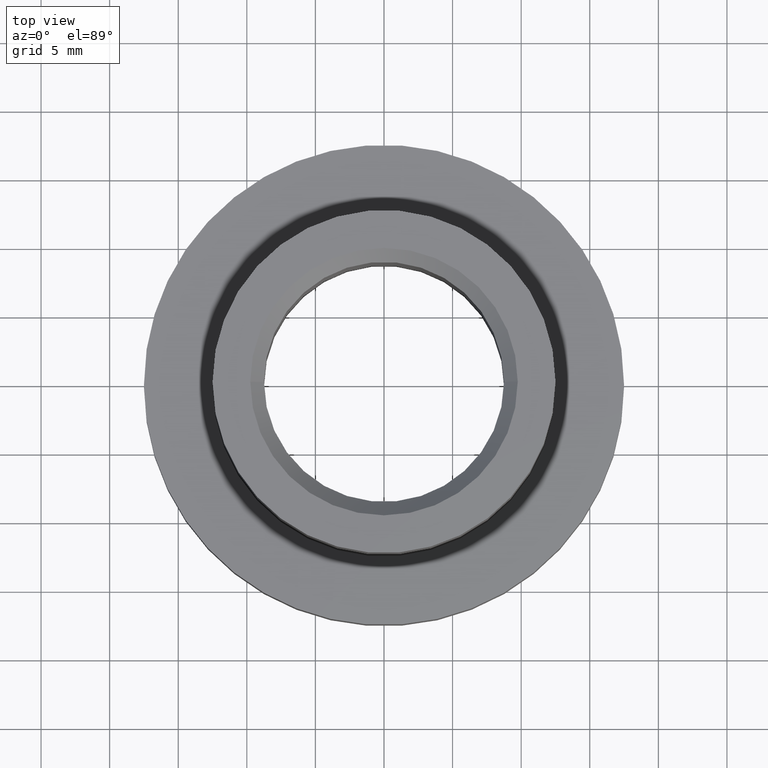
[diagram: clean part render]
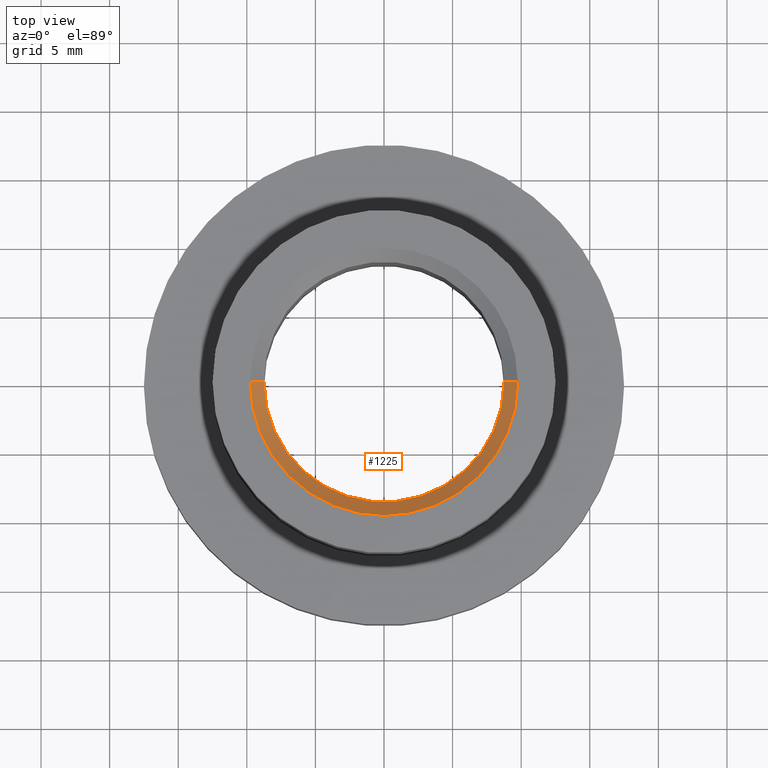
[diagram: same view with one face highlighted and labeled with its STEP entity id]
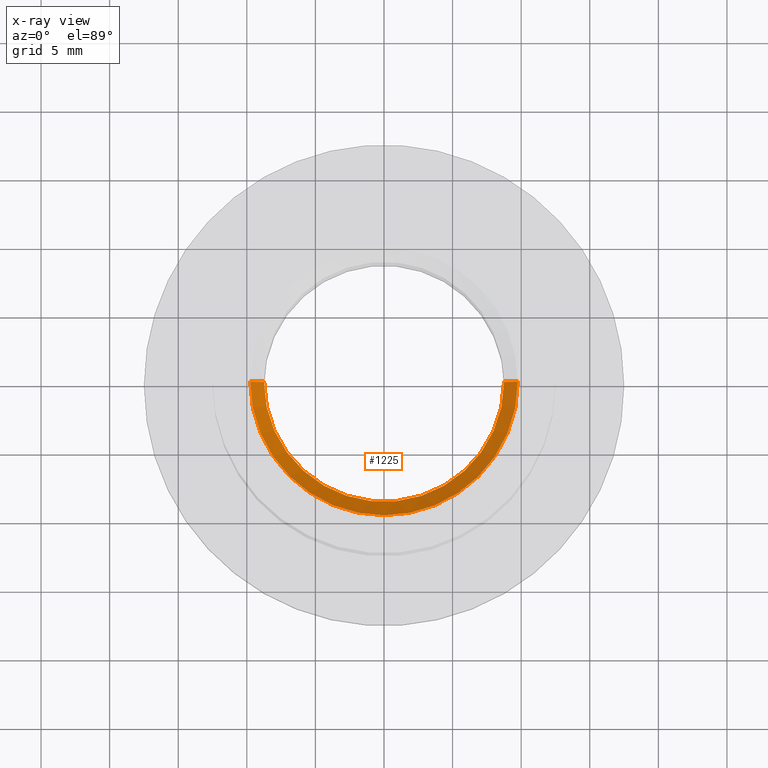
[diagram: x-ray of the same camera — body ghosted, the highlighted face saturated]
A machine part, top view. The second image highlights one B-rep face of the part: STEP entity #1225.
The next image is the same camera in x-ray: the body ghosted, the highlighted face saturated — about 0% of this face is hidden behind the body in this view.
In plain terms, the highlighted conical surface has half-angle 45 deg.
Its self-contained STEP definition (entity closure, byte-faithful):
#504 = CARTESIAN_POINT ( 'NONE',  ( 0.000000000000000000, 0.000000000000000000, 8.999999999999989342 ) ) ;
#925 = AXIS2_PLACEMENT_3D ( 'NONE', #8452, #1916, #5134 ) ;
#1014 = CIRCLE ( 'NONE', #925, 9.750000000000008882 ) ;
#1225 = ADVANCED_FACE ( 'NONE', ( #2561 ), #13304, .F. ) ;
#1511 = VERTEX_POINT ( 'NONE', #1561 ) ;
#1540 = EDGE_CURVE ( 'NONE', #1511, #12894, #4112, .T. ) ;
#1561 = CARTESIAN_POINT ( 'NONE',  ( -8.749999999999994671, 1.071565949253933138E-15, 8.999999999999989342 ) ) ;
#1916 = DIRECTION ( 'NONE',  ( 0.000000000000000000, 0.000000000000000000, -1.000000000000000000 ) ) ;
#2008 = VECTOR ( 'NONE', #2320, 1000.000000000000000 ) ;
#2320 = DIRECTION ( 'NONE',  ( -0.7071067811865487940, 8.659560562354948882E-17, 0.7071067811865463515 ) ) ;
#2561 = FACE_OUTER_BOUND ( 'NONE', #12603, .T. ) ;
#3586 = ORIENTED_EDGE ( 'NONE', *, *, #1540, .F. ) ;
#3630 = CARTESIAN_POINT ( 'NONE',  ( 0.000000000000000000, 0.000000000000000000, 8.999999999999989342 ) ) ;
#3863 = EDGE_CURVE ( 'NONE', #5375, #6345, #1014, .T. ) ;
#3885 = CARTESIAN_POINT ( 'NONE',  ( 8.749999999999994671, 0.000000000000000000, 8.999999999999989342 ) ) ;
#4069 = LINE ( 'NONE', #8621, #2008 ) ;
#4112 = CIRCLE ( 'NONE', #10825, 8.749999999999994671 ) ;
#4173 = CARTESIAN_POINT ( 'NONE',  ( -9.750000000000008882, 1.194030629168670456E-15, 10.00000000000000000 ) ) ;
#5026 = ORIENTED_EDGE ( 'NONE', *, *, #5698, .T. ) ;
#5062 = EDGE_CURVE ( 'NONE', #12894, #5375, #10585, .T. ) ;
#5134 = DIRECTION ( 'NONE',  ( -1.000000000000000000, 0.000000000000000000, 0.000000000000000000 ) ) ;
#5305 = ORIENTED_EDGE ( 'NONE', *, *, #3863, .F. ) ;
#5375 = VERTEX_POINT ( 'NONE', #6726 ) ;
#5698 = EDGE_CURVE ( 'NONE', #1511, #6345, #4069, .T. ) ;
#6345 = VERTEX_POINT ( 'NONE', #4173 ) ;
#6726 = CARTESIAN_POINT ( 'NONE',  ( 9.750000000000008882, 0.000000000000000000, 10.00000000000000000 ) ) ;
#7139 = DIRECTION ( 'NONE',  ( -1.000000000000000000, 0.000000000000000000, 0.000000000000000000 ) ) ;
#8251 = DIRECTION ( 'NONE',  ( 0.7071067811865487940, 0.000000000000000000, 0.7071067811865463515 ) ) ;
#8452 = CARTESIAN_POINT ( 'NONE',  ( 0.000000000000000000, 0.000000000000000000, 10.00000000000000000 ) ) ;
#8621 = CARTESIAN_POINT ( 'NONE',  ( -8.749999999999994671, 1.071565949253933138E-15, 8.999999999999989342 ) ) ;
#9210 = CARTESIAN_POINT ( 'NONE',  ( 8.749999999999994671, 0.000000000000000000, 8.999999999999989342 ) ) ;
#10411 = DIRECTION ( 'NONE',  ( 0.000000000000000000, 0.000000000000000000, 1.000000000000000000 ) ) ;
#10585 = LINE ( 'NONE', #3885, #10752 ) ;
#10664 = ORIENTED_EDGE ( 'NONE', *, *, #5062, .F. ) ;
#10752 = VECTOR ( 'NONE', #8251, 1000.000000000000000 ) ;
#10825 = AXIS2_PLACEMENT_3D ( 'NONE', #3630, #10411, #7139 ) ;
#11496 = DIRECTION ( 'NONE',  ( 0.000000000000000000, 0.000000000000000000, 1.000000000000000000 ) ) ;
#11588 = DIRECTION ( 'NONE',  ( 1.000000000000000000, 0.000000000000000000, 0.000000000000000000 ) ) ;
#12603 = EDGE_LOOP ( 'NONE', ( #3586, #5026, #5305, #10664 ) ) ;
#12894 = VERTEX_POINT ( 'NONE', #9210 ) ;
#13304 = CONICAL_SURFACE ( 'NONE', #14165, 8.749999999999994671, 0.7853981633974500554 ) ;
#14165 = AXIS2_PLACEMENT_3D ( 'NONE', #504, #11496, #11588 ) ;